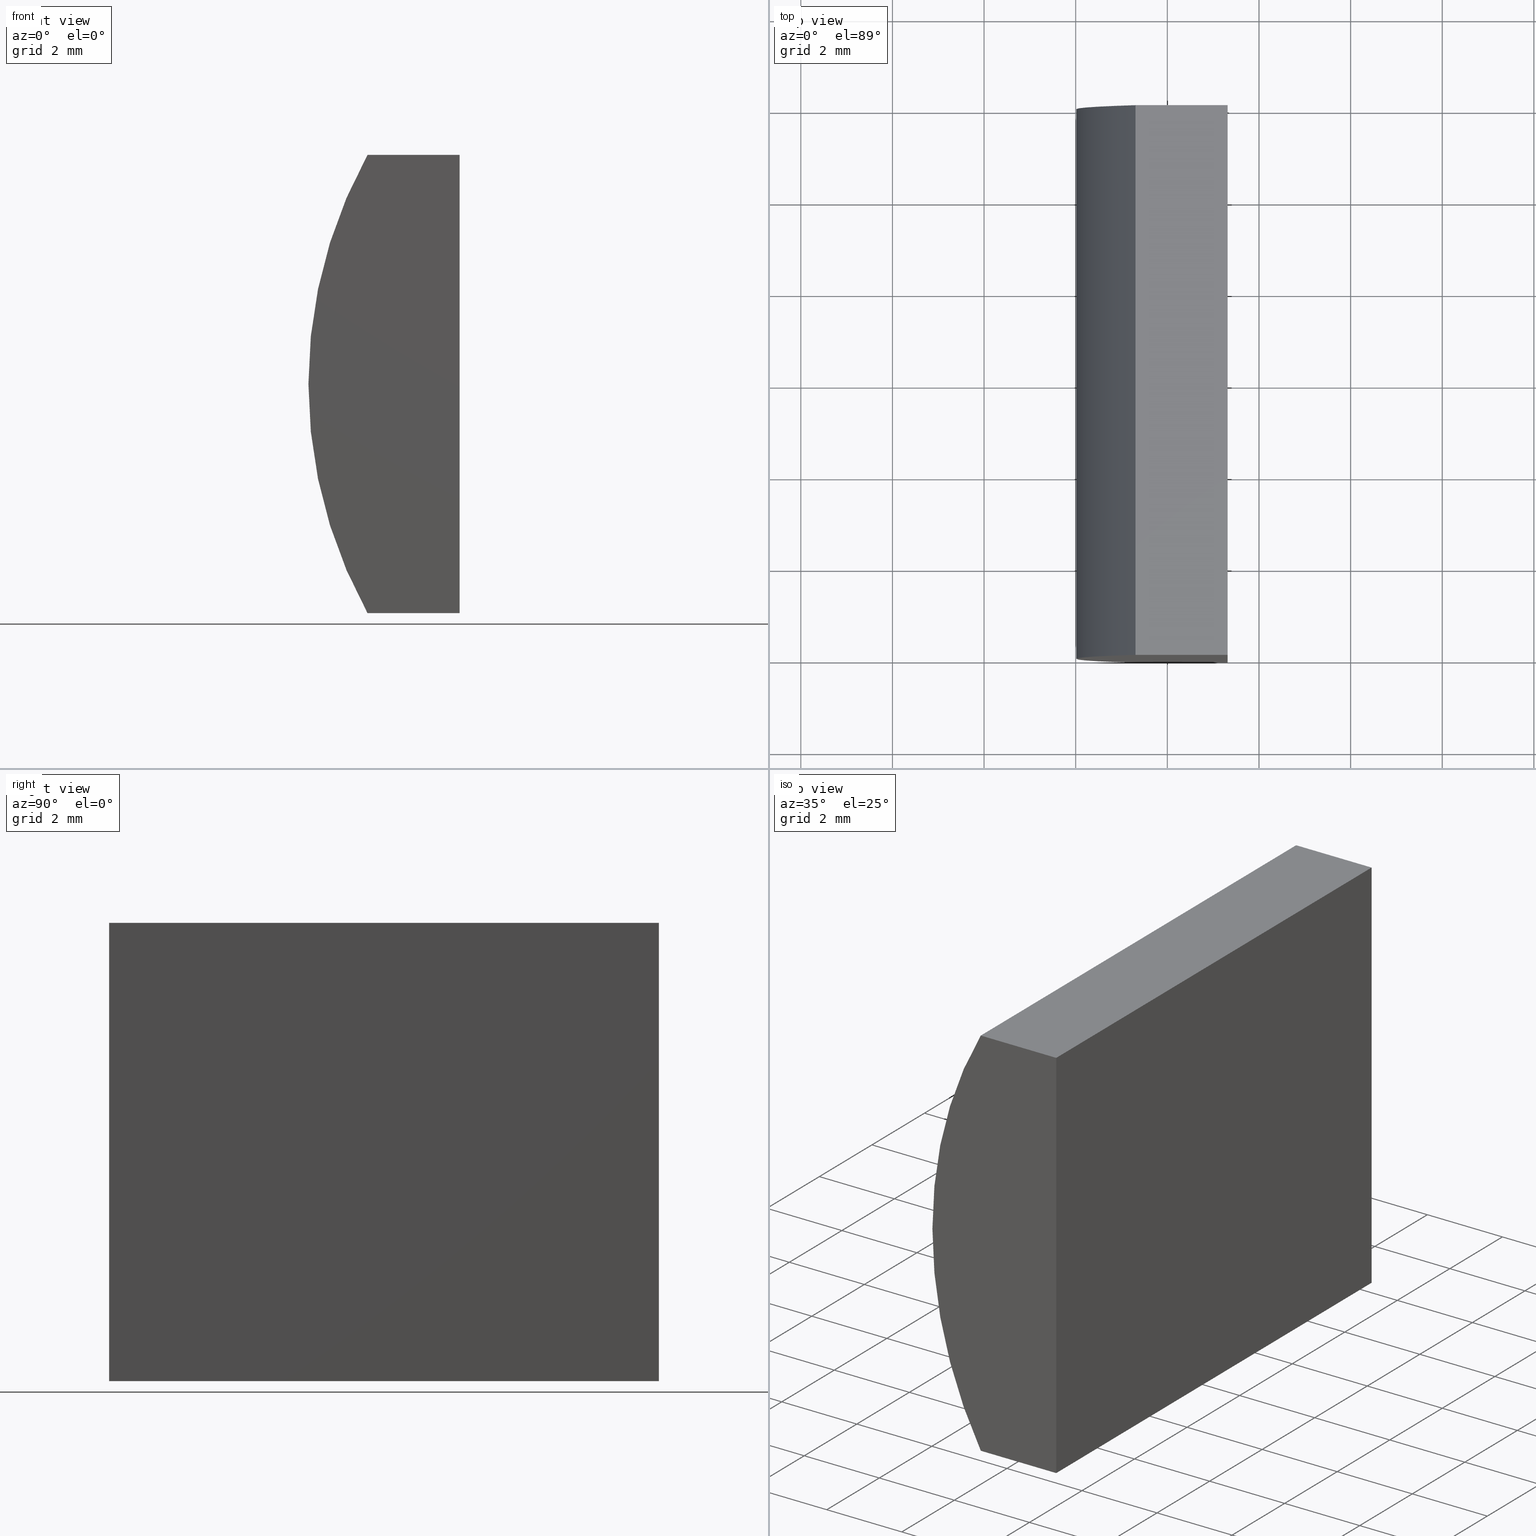
[diagram: canonical four-view strip — front | top / right | iso, engineering-drawing reading convention]
A machine part, canonical four-view strip (front | top / right | iso — engineering-drawing reading convention). The complete STEP part file that produces these views, byte-faithful:
ISO-10303-21;
HEADER;
FILE_DESCRIPTION (( 'STEP AP214' ),
    '1' );
FILE_NAME ('155014.STEP',
    '2019-06-17T01:55:52',
    ( 'user' ),
    ( '΢���й�' ),
    'SwSTEP 2.0',
    'SolidWorks 2016',
    '' );
FILE_SCHEMA (( 'AUTOMOTIVE_DESIGN' ));
ENDSEC;

DATA;
#1 = ORIENTED_EDGE ( 'NONE', *, *, #59, .T. ) ;
#2 = CARTESIAN_POINT ( 'NONE',  ( -4.695519393116569500, 0.0000000000000000000, -5.000000000000000000 ) ) ;
#3 = VERTEX_POINT ( 'NONE', #68 ) ;
#4 = ORIENTED_EDGE ( 'NONE', *, *, #42, .F. ) ;
#5 = DIRECTION ( 'NONE',  ( -0.0000000000000000000, -1.000000000000000000, -0.0000000000000000000 ) ) ;
#6 = ADVANCED_FACE ( 'NONE', ( #198 ), #36, .F. ) ;
#7 = PRODUCT_DEFINITION_SHAPE ( 'NONE', 'NONE',  #25 ) ;
#8 = VERTEX_POINT ( 'NONE', #175 ) ;
#9 =( NAMED_UNIT ( * ) PLANE_ANGLE_UNIT ( ) SI_UNIT ( $, .RADIAN. ) );
#10 = LINE ( 'NONE', #80, #182 ) ;
#11 = CARTESIAN_POINT ( 'NONE',  ( -4.695519393116569500, 12.00000000000000000, 5.000000000000000000 ) ) ;
#12 = DIRECTION ( 'NONE',  ( 0.0000000000000000000, 1.000000000000000000, 0.0000000000000000000 ) ) ;
#13 = DIRECTION ( 'NONE',  ( 1.000000000000000000, 0.0000000000000000000, 0.0000000000000000000 ) ) ;
#14 = ORIENTED_EDGE ( 'NONE', *, *, #35, .T. ) ;
#15 = VECTOR ( 'NONE', #72, 1000.000000000000000 ) ;
#16 = MECHANICAL_DESIGN_GEOMETRIC_PRESENTATION_REPRESENTATION (  '', ( #142 ), #47 ) ;
#17 = SURFACE_SIDE_STYLE ('',( #95 ) ) ;
#18 = FACE_OUTER_BOUND ( 'NONE', #60, .T. ) ;
#19 = DIRECTION ( 'NONE',  ( 0.0000000000000000000, 0.0000000000000000000, 1.000000000000000000 ) ) ;
#20 = DIRECTION ( 'NONE',  ( -0.0000000000000000000, -1.000000000000000000, -0.0000000000000000000 ) ) ;
#21 = ORIENTED_EDGE ( 'NONE', *, *, #148, .T. ) ;
#22 = VERTEX_POINT ( 'NONE', #2 ) ;
#23 = ORIENTED_EDGE ( 'NONE', *, *, #172, .T. ) ;
#24 = FILL_AREA_STYLE ('',( #69 ) ) ;
#25 = PRODUCT_DEFINITION ( 'δ֪', '', #28, #192 ) ;
#26 = PRODUCT_CONTEXT ( 'NONE', #45, 'mechanical' ) ;
#27 = FACE_OUTER_BOUND ( 'NONE', #108, .T. ) ;
#28 = PRODUCT_DEFINITION_FORMATION_WITH_SPECIFIED_SOURCE ( '�κ�', '', #50, .NOT_KNOWN. ) ;
#29 = ORIENTED_EDGE ( 'NONE', *, *, #187, .T. ) ;
#30 = CARTESIAN_POINT ( 'NONE',  ( -2.684795665148736800, 12.00000000000000000, -5.000000000000001800 ) ) ;
#31 = ADVANCED_FACE ( 'NONE', ( #27 ), #76, .F. ) ;
#32 = DIRECTION ( 'NONE',  ( 3.035766082959411900E-016, 0.0000000000000000000, 1.000000000000000000 ) ) ;
#33 = VERTEX_POINT ( 'NONE', #79 ) ;
#34 = VECTOR ( 'NONE', #186, 1000.000000000000000 ) ;
#35 = EDGE_CURVE ( 'NONE', #33, #3, #58, .T. ) ;
#36 = PLANE ( 'NONE',  #155 ) ;
#37 = LINE ( 'NONE', #173, #43 ) ;
#38 =( NAMED_UNIT ( * ) SI_UNIT ( $, .STERADIAN. ) SOLID_ANGLE_UNIT ( ) );
#39 = PRESENTATION_STYLE_ASSIGNMENT (( #153 ) ) ;
#40 = DIRECTION ( 'NONE',  ( -1.000000000000000000, -0.0000000000000000000, 8.627358656228873800E-016 ) ) ;
#41 = LINE ( 'NONE', #93, #100 ) ;
#42 = EDGE_CURVE ( 'NONE', #8, #111, #183, .T. ) ;
#43 = VECTOR ( 'NONE', #40, 1000.000000000000000 ) ;
#44 = ORIENTED_EDGE ( 'NONE', *, *, #132, .T. ) ;
#45 = APPLICATION_CONTEXT ( 'automotive_design' ) ;
#46 = ADVANCED_FACE ( 'NONE', ( #168 ), #169, .T. ) ;
#47 =( GEOMETRIC_REPRESENTATION_CONTEXT ( 3 ) GLOBAL_UNCERTAINTY_ASSIGNED_CONTEXT ( ( #149 ) ) GLOBAL_UNIT_ASSIGNED_CONTEXT ( ( #92, #89, #110 ) ) REPRESENTATION_CONTEXT ( 'NONE', 'WORKASPACE' ) );
#48 = EDGE_LOOP ( 'NONE', ( #21, #159, #88, #71 ) ) ;
#49 = CIRCLE ( 'NONE', #128, 10.34000000000000000 ) ;
#50 = PRODUCT ( '155014', '155014', '', ( #26 ) ) ;
#51 = SURFACE_SIDE_STYLE ('',( #127 ) ) ;
#52 = LINE ( 'NONE', #170, #34 ) ;
#53 = DIRECTION ( 'NONE',  ( -1.000000000000000000, 0.0000000000000000000, 3.035766082959411900E-016 ) ) ;
#54 = DIRECTION ( 'NONE',  ( -0.0000000000000000000, -1.000000000000000000, -0.0000000000000000000 ) ) ;
#55 = AXIS2_PLACEMENT_3D ( 'NONE', #11, #180, #181 ) ;
#56 = DIRECTION ( 'NONE',  ( 1.000000000000000000, 0.0000000000000000000, 0.0000000000000000000 ) ) ;
#57 = DIRECTION ( 'NONE',  ( 0.0000000000000000000, 1.000000000000000000, 0.0000000000000000000 ) ) ;
#58 = CIRCLE ( 'NONE', #123, 10.34000000000000000 ) ;
#59 = EDGE_CURVE ( 'NONE', #99, #111, #41, .T. ) ;
#60 = EDGE_LOOP ( 'NONE', ( #29, #141, #163, #103 ) ) ;
#61 = EDGE_CURVE ( 'NONE', #146, #119, #10, .T. ) ;
#62 =( LENGTH_UNIT ( ) NAMED_UNIT ( * ) SI_UNIT ( .MILLI., .METRE. ) );
#63 = DIRECTION ( 'NONE',  ( 1.000000000000000000, 0.0000000000000000000, 0.0000000000000000000 ) ) ;
#64 = CARTESIAN_POINT ( 'NONE',  ( -2.684795665148733700, 12.00000000000000000, 5.000000000000000000 ) ) ;
#65 = UNCERTAINTY_MEASURE_WITH_UNIT (LENGTH_MEASURE( 1.000000000000000100E-005 ), #197, 'distance_accuracy_value', 'NONE');
#66 = AXIS2_PLACEMENT_3D ( 'NONE', #160, #12, #70 ) ;
#67 = CARTESIAN_POINT ( 'NONE',  ( -4.695519393116569500, 12.00000000000000000, -5.000000000000000000 ) ) ;
#68 = CARTESIAN_POINT ( 'NONE',  ( -4.695519393116569500, 12.00000000000000000, 5.000000000000000000 ) ) ;
#69 = FILL_AREA_STYLE_COLOUR ( '', #138 ) ;
#70 = DIRECTION ( 'NONE',  ( 0.0000000000000000000, -0.0000000000000000000, 1.000000000000000000 ) ) ;
#71 = ORIENTED_EDGE ( 'NONE', *, *, #164, .T. ) ;
#72 = DIRECTION ( 'NONE',  ( -1.000000000000000000, -0.0000000000000000000, 8.627358656228873800E-016 ) ) ;
#73 = ORIENTED_EDGE ( 'NONE', *, *, #152, .F. ) ;
#74 = CARTESIAN_POINT ( 'NONE',  ( -4.695519393116569500, 0.0000000000000000000, 5.000000000000000000 ) ) ;
#75 = EDGE_CURVE ( 'NONE', #3, #8, #136, .T. ) ;
#76 = PLANE ( 'NONE',  #55 ) ;
#77 = VECTOR ( 'NONE', #5, 1000.000000000000000 ) ;
#78 = LINE ( 'NONE', #30, #113 ) ;
#79 = CARTESIAN_POINT ( 'NONE',  ( -4.695519393116569500, 12.00000000000000000, -5.000000000000000000 ) ) ;
#80 = CARTESIAN_POINT ( 'NONE',  ( -2.684795665148736800, 12.00000000000000000, -5.000000000000001800 ) ) ;
#81 = ORIENTED_EDGE ( 'NONE', *, *, #75, .F. ) ;
#82 = EDGE_LOOP ( 'NONE', ( #189, #150, #91, #200 ) ) ;
#83 = DIRECTION ( 'NONE',  ( 1.000000000000000000, 0.0000000000000000000, -8.627358656228873800E-016 ) ) ;
#84 = SURFACE_STYLE_USAGE ( .BOTH. , #17 ) ;
#85 = ORIENTED_EDGE ( 'NONE', *, *, #75, .T. ) ;
#86 = COLOUR_RGB ( '',1.000000000000000000, 1.000000000000000000, 1.000000000000000000 ) ;
#87 = CARTESIAN_POINT ( 'NONE',  ( -4.695519393116569500, 0.0000000000000000000, -5.000000000000000000 ) ) ;
#88 = ORIENTED_EDGE ( 'NONE', *, *, #35, .F. ) ;
#89 =( NAMED_UNIT ( * ) PLANE_ANGLE_UNIT ( ) SI_UNIT ( $, .RADIAN. ) );
#90 = EDGE_LOOP ( 'NONE', ( #114, #73, #157, #98 ) ) ;
#91 = ORIENTED_EDGE ( 'NONE', *, *, #132, .F. ) ;
#92 =( LENGTH_UNIT ( ) NAMED_UNIT ( * ) SI_UNIT ( .MILLI., .METRE. ) );
#93 = CARTESIAN_POINT ( 'NONE',  ( -4.695519393116569500, 0.0000000000000000000, 5.000000000000000000 ) ) ;
#94 = PRESENTATION_LAYER_ASSIGNMENT (  '', '', ( #102 ) ) ;
#95 = SURFACE_STYLE_FILL_AREA ( #24 ) ;
#96 = PRODUCT_RELATED_PRODUCT_CATEGORY ( 'part', '', ( #50 ) ) ;
#97 =( NAMED_UNIT ( * ) PLANE_ANGLE_UNIT ( ) SI_UNIT ( $, .RADIAN. ) );
#98 = ORIENTED_EDGE ( 'NONE', *, *, #59, .F. ) ;
#99 = VERTEX_POINT ( 'NONE', #74 ) ;
#100 = VECTOR ( 'NONE', #13, 1000.000000000000000 ) ;
#101 = DIRECTION ( 'NONE',  ( 0.0000000000000000000, 1.000000000000000000, 0.0000000000000000000 ) ) ;
#102 = STYLED_ITEM ( 'NONE', ( #151 ), #107 ) ;
#103 = ORIENTED_EDGE ( 'NONE', *, *, #42, .T. ) ;
#104 = FILL_AREA_STYLE ('',( #124 ) ) ;
#105 = CARTESIAN_POINT ( 'NONE',  ( -2.684795665148733700, 0.0000000000000000000, 5.000000000000000000 ) ) ;
#106 = CYLINDRICAL_SURFACE ( 'NONE', #171, 10.34000000000000000 ) ;
#107 = MANIFOLD_SOLID_BREP ( '͹̨-����1', #166 ) ;
#108 = EDGE_LOOP ( 'NONE', ( #1, #4, #81, #23 ) ) ;
#109 = DIRECTION ( 'NONE',  ( 8.627358656228873800E-016, -0.0000000000000000000, 1.000000000000000000 ) ) ;
#110 =( NAMED_UNIT ( * ) SI_UNIT ( $, .STERADIAN. ) SOLID_ANGLE_UNIT ( ) );
#111 = VERTEX_POINT ( 'NONE', #105 ) ;
#112 = APPLICATION_CONTEXT ( 'automotive_design' ) ;
#113 = VECTOR ( 'NONE', #139, 1000.000000000000000 ) ;
#114 = ORIENTED_EDGE ( 'NONE', *, *, #148, .F. ) ;
#115 = DIRECTION ( 'NONE',  ( 0.0000000000000000000, 0.0000000000000000000, -1.000000000000000000 ) ) ;
#116 = PLANE ( 'NONE',  #158 ) ;
#117 = DIRECTION ( 'NONE',  ( 0.0000000000000000000, 1.000000000000000000, 0.0000000000000000000 ) ) ;
#118 =( GEOMETRIC_REPRESENTATION_CONTEXT ( 3 ) GLOBAL_UNCERTAINTY_ASSIGNED_CONTEXT ( ( #65 ) ) GLOBAL_UNIT_ASSIGNED_CONTEXT ( ( #197, #97, #38 ) ) REPRESENTATION_CONTEXT ( 'NONE', 'WORKASPACE' ) );
#119 = VERTEX_POINT ( 'NONE', #130 ) ;
#120 = CARTESIAN_POINT ( 'NONE',  ( -2.684795665148736800, 12.00000000000000000, -5.000000000000001800 ) ) ;
#121 = AXIS2_PLACEMENT_3D ( 'NONE', #178, #129, #63 ) ;
#122 = VECTOR ( 'NONE', #20, 1000.000000000000000 ) ;
#123 = AXIS2_PLACEMENT_3D ( 'NONE', #135, #117, #19 ) ;
#124 = FILL_AREA_STYLE_COLOUR ( '', #86 ) ;
#125 = CARTESIAN_POINT ( 'NONE',  ( 4.355204334851265500, 0.0000000000000000000, 4.286263797015675000E-017 ) ) ;
#126 = LINE ( 'NONE', #87, #15 ) ;
#127 = SURFACE_STYLE_FILL_AREA ( #104 ) ;
#128 = AXIS2_PLACEMENT_3D ( 'NONE', #125, #101, #195 ) ;
#129 = DIRECTION ( 'NONE',  ( 0.0000000000000000000, 0.0000000000000000000, 1.000000000000000000 ) ) ;
#130 = CARTESIAN_POINT ( 'NONE',  ( -2.684795665148736800, 0.0000000000000000000, -5.000000000000001800 ) ) ;
#131 =( NAMED_UNIT ( * ) SI_UNIT ( $, .STERADIAN. ) SOLID_ANGLE_UNIT ( ) );
#132 = EDGE_CURVE ( 'NONE', #146, #33, #37, .T. ) ;
#133 = CARTESIAN_POINT ( 'NONE',  ( -4.695519393116569500, 12.00000000000000000, 5.000000000000000000 ) ) ;
#134 = APPLICATION_PROTOCOL_DEFINITION ( 'draft international standard', 'automotive_design', 1998, #112 ) ;
#135 = CARTESIAN_POINT ( 'NONE',  ( 4.355204334851265500, 12.00000000000000000, 4.286263797015675000E-017 ) ) ;
#136 = LINE ( 'NONE', #143, #145 ) ;
#137 = EDGE_CURVE ( 'NONE', #8, #146, #78, .T. ) ;
#138 = COLOUR_RGB ( '',1.000000000000000000, 1.000000000000000000, 1.000000000000000000 ) ;
#139 = DIRECTION ( 'NONE',  ( -3.035766082959411900E-016, -0.0000000000000000000, -1.000000000000000000 ) ) ;
#140 = ORIENTED_EDGE ( 'NONE', *, *, #137, .T. ) ;
#141 = ORIENTED_EDGE ( 'NONE', *, *, #61, .F. ) ;
#142 = STYLED_ITEM ( 'NONE', ( #39 ), #162 ) ;
#143 = CARTESIAN_POINT ( 'NONE',  ( -4.695519393116569500, 12.00000000000000000, 5.000000000000000000 ) ) ;
#144 = ADVANCED_FACE ( 'NONE', ( #18 ), #201, .F. ) ;
#145 = VECTOR ( 'NONE', #56, 1000.000000000000000 ) ;
#146 = VERTEX_POINT ( 'NONE', #194 ) ;
#147 = APPLICATION_PROTOCOL_DEFINITION ( 'draft international standard', 'automotive_design', 1998, #45 ) ;
#148 = EDGE_CURVE ( 'NONE', #22, #99, #49, .T. ) ;
#149 = UNCERTAINTY_MEASURE_WITH_UNIT (LENGTH_MEASURE( 1.000000000000000100E-005 ), #92, 'distance_accuracy_value', 'NONE');
#150 = ORIENTED_EDGE ( 'NONE', *, *, #164, .F. ) ;
#151 = PRESENTATION_STYLE_ASSIGNMENT (( #84 ) ) ;
#152 = EDGE_CURVE ( 'NONE', #119, #22, #126, .T. ) ;
#153 = SURFACE_STYLE_USAGE ( .BOTH. , #51 ) ;
#154 = DIRECTION ( 'NONE',  ( -0.0000000000000000000, -1.000000000000000000, -0.0000000000000000000 ) ) ;
#155 = AXIS2_PLACEMENT_3D ( 'NONE', #184, #57, #167 ) ;
#156 = CARTESIAN_POINT ( 'NONE',  ( -4.695519393116569500, 12.00000000000000000, -5.000000000000000000 ) ) ;
#157 = ORIENTED_EDGE ( 'NONE', *, *, #187, .F. ) ;
#158 = AXIS2_PLACEMENT_3D ( 'NONE', #67, #109, #83 ) ;
#159 = ORIENTED_EDGE ( 'NONE', *, *, #172, .F. ) ;
#160 = CARTESIAN_POINT ( 'NONE',  ( 4.355204334851265500, 12.00000000000000000, 4.286263797015675000E-017 ) ) ;
#161 = PRESENTATION_LAYER_ASSIGNMENT (  '', '', ( #142 ) ) ;
#162 = ADVANCED_BREP_SHAPE_REPRESENTATION ( '155014', ( #107, #121 ), #204 ) ;
#163 = ORIENTED_EDGE ( 'NONE', *, *, #137, .F. ) ;
#164 = EDGE_CURVE ( 'NONE', #33, #22, #199, .T. ) ;
#165 = ADVANCED_FACE ( 'NONE', ( #179 ), #116, .F. ) ;
#166 = CLOSED_SHELL ( 'NONE', ( #193, #31, #144, #165, #46, #6 ) ) ;
#167 = DIRECTION ( 'NONE',  ( 0.0000000000000000000, -0.0000000000000000000, 1.000000000000000000 ) ) ;
#168 = FACE_OUTER_BOUND ( 'NONE', #174, .T. ) ;
#169 = PLANE ( 'NONE',  #66 ) ;
#170 = CARTESIAN_POINT ( 'NONE',  ( -2.684795665148736800, 0.0000000000000000000, -5.000000000000001800 ) ) ;
#171 = AXIS2_PLACEMENT_3D ( 'NONE', #188, #203, #115 ) ;
#172 = EDGE_CURVE ( 'NONE', #3, #99, #177, .T. ) ;
#173 = CARTESIAN_POINT ( 'NONE',  ( -4.695519393116569500, 12.00000000000000000, -5.000000000000000000 ) ) ;
#174 = EDGE_LOOP ( 'NONE', ( #14, #85, #140, #44 ) ) ;
#175 = CARTESIAN_POINT ( 'NONE',  ( -2.684795665148733700, 12.00000000000000000, 5.000000000000000000 ) ) ;
#176 = UNCERTAINTY_MEASURE_WITH_UNIT (LENGTH_MEASURE( 1.000000000000000100E-005 ), #62, 'distance_accuracy_value', 'NONE');
#177 = LINE ( 'NONE', #133, #185 ) ;
#178 = CARTESIAN_POINT ( 'NONE',  ( 0.0000000000000000000, 0.0000000000000000000, 0.0000000000000000000 ) ) ;
#179 = FACE_OUTER_BOUND ( 'NONE', #82, .T. ) ;
#180 = DIRECTION ( 'NONE',  ( 0.0000000000000000000, 0.0000000000000000000, -1.000000000000000000 ) ) ;
#181 = DIRECTION ( 'NONE',  ( -1.000000000000000000, 0.0000000000000000000, -0.0000000000000000000 ) ) ;
#182 = VECTOR ( 'NONE', #154, 1000.000000000000000 ) ;
#183 = LINE ( 'NONE', #64, #122 ) ;
#184 = CARTESIAN_POINT ( 'NONE',  ( 4.355204334851265500, 0.0000000000000000000, 4.286263797015675000E-017 ) ) ;
#185 = VECTOR ( 'NONE', #54, 1000.000000000000000 ) ;
#186 = DIRECTION ( 'NONE',  ( -3.035766082959411900E-016, -0.0000000000000000000, -1.000000000000000000 ) ) ;
#187 = EDGE_CURVE ( 'NONE', #111, #119, #52, .T. ) ;
#188 = CARTESIAN_POINT ( 'NONE',  ( 4.355204334851265500, 12.00000000000000000, 4.286263797015675000E-017 ) ) ;
#189 = ORIENTED_EDGE ( 'NONE', *, *, #152, .T. ) ;
#190 = MECHANICAL_DESIGN_GEOMETRIC_PRESENTATION_REPRESENTATION (  '', ( #102 ), #118 ) ;
#191 = FACE_OUTER_BOUND ( 'NONE', #48, .T. ) ;
#192 = PRODUCT_DEFINITION_CONTEXT ( 'detailed design', #112, 'design' ) ;
#193 = ADVANCED_FACE ( 'NONE', ( #191 ), #106, .T. ) ;
#194 = CARTESIAN_POINT ( 'NONE',  ( -2.684795665148736800, 12.00000000000000000, -5.000000000000001800 ) ) ;
#195 = DIRECTION ( 'NONE',  ( 0.0000000000000000000, 0.0000000000000000000, 1.000000000000000000 ) ) ;
#196 = SHAPE_DEFINITION_REPRESENTATION ( #7, #162 ) ;
#197 =( LENGTH_UNIT ( ) NAMED_UNIT ( * ) SI_UNIT ( .MILLI., .METRE. ) );
#198 = FACE_OUTER_BOUND ( 'NONE', #90, .T. ) ;
#199 = LINE ( 'NONE', #156, #77 ) ;
#200 = ORIENTED_EDGE ( 'NONE', *, *, #61, .T. ) ;
#201 = PLANE ( 'NONE',  #202 ) ;
#202 = AXIS2_PLACEMENT_3D ( 'NONE', #120, #53, #32 ) ;
#203 = DIRECTION ( 'NONE',  ( -0.0000000000000000000, -1.000000000000000000, -0.0000000000000000000 ) ) ;
#204 =( GEOMETRIC_REPRESENTATION_CONTEXT ( 3 ) GLOBAL_UNCERTAINTY_ASSIGNED_CONTEXT ( ( #176 ) ) GLOBAL_UNIT_ASSIGNED_CONTEXT ( ( #62, #9, #131 ) ) REPRESENTATION_CONTEXT ( 'NONE', 'WORKASPACE' ) );
ENDSEC;
END-ISO-10303-21;
